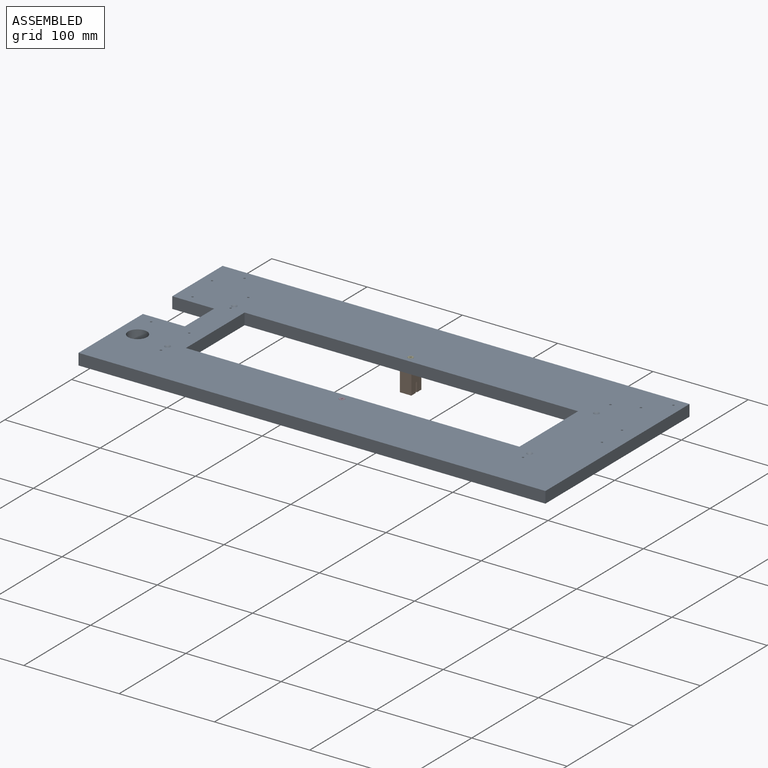
[diagram: assembled view]
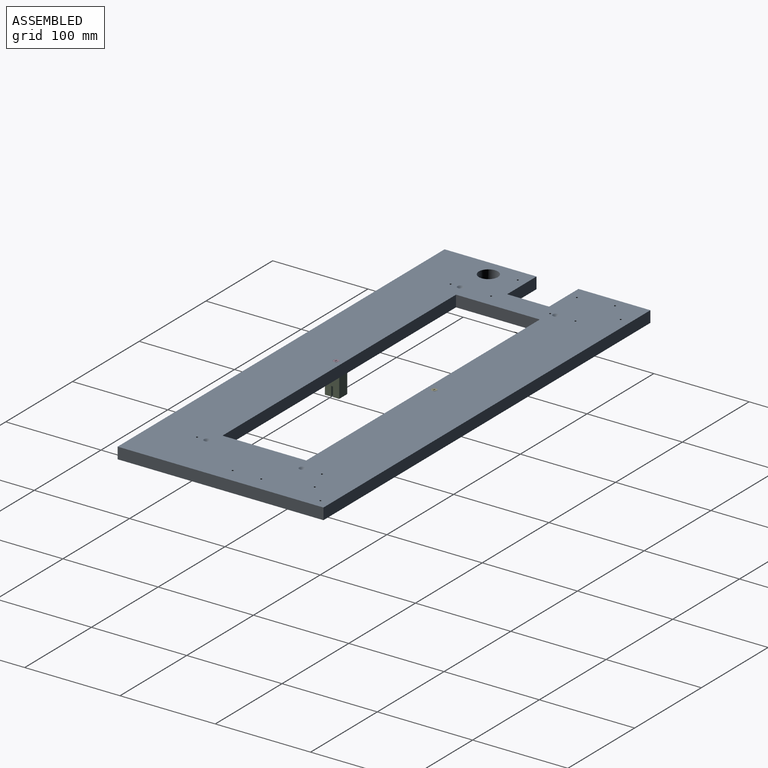
[diagram: assembled view, second angle]
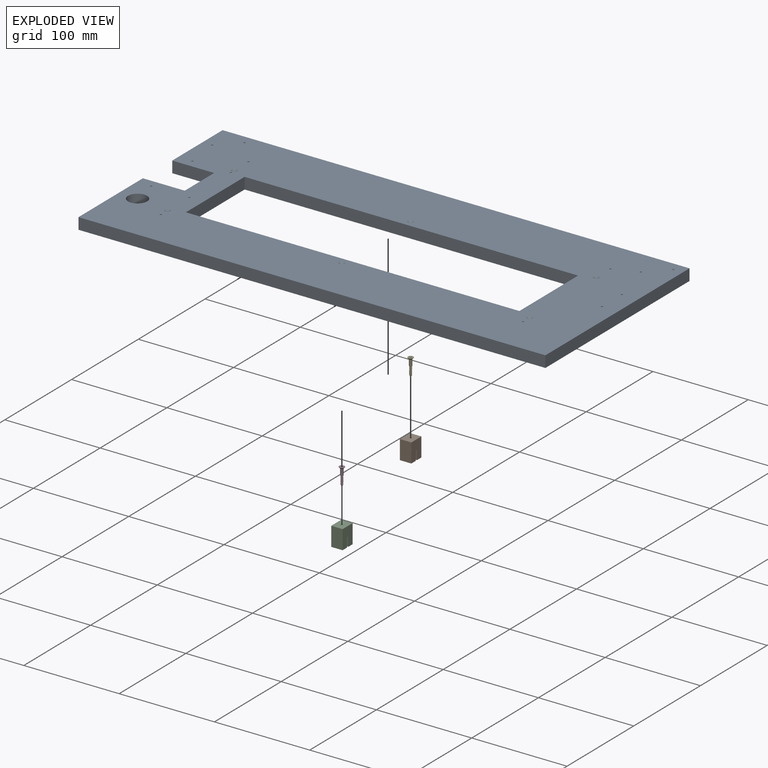
[diagram: exploded view]
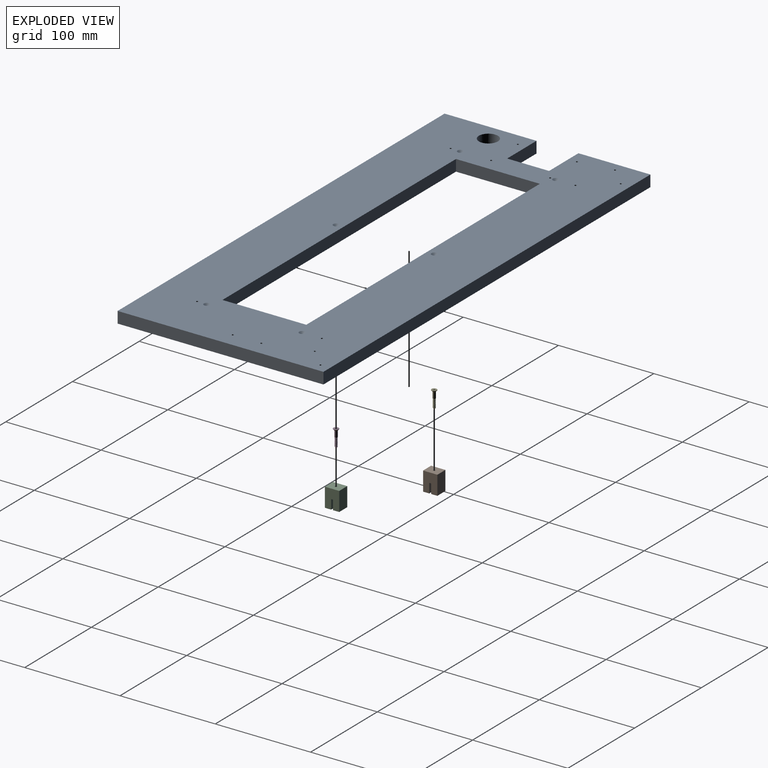
[diagram: exploded view, second angle]
ASSEMBLY  parts=5 mates=4
PART A: 51 faces, bbox 490x216x12 mm
  f0: plane 96.5x12mm, normal (-1,0,0), area 1158mm2, adj f1,f6,f9,f34
  f1: plane 490x216mm, normal (0,0,-1), area 72343.7mm2, adj f0,f2,f3,f4,f5,f7,f8,f9
  f2: plane 350x12mm, normal (0,-1,0), area 4200mm2, adj f1,f3,f5,f6
  f3: plane 88x12mm, normal (1,0,0), area 1056mm2, adj f1,f2,f4,f6
  f4: plane 350x12mm, normal (0,1,0), area 4200mm2, adj f1,f3,f5,f6
  f5: plane 88x12mm, normal (-1,0,0), area 1056mm2, adj f1,f2,f4,f6
  f6: plane 490x216mm, normal (0,0,1), area 72576.2mm2, adj f0,f2,f3,f4,f5,f7,f8,f9
  f7: plane 75.5x12mm, normal (-1,0,0), area 906mm2, adj f1,f6,f11,f12
  f8: plane 216x12mm, normal (1,0,0), area 2592mm2, adj f1,f6,f12,f34
  f9: plane 44x12mm, normal (0,1,0), area 528mm2, adj f0,f1,f6,f10
  f10: plane 44x12mm, normal (-1,0,0), area 528mm2, adj f1,f6,f9,f11
  f11: plane 44x12mm, normal (0,-1,0), area 528mm2, adj f1,f6,f7,f10
  f12: plane 490x12mm, normal (0,1,0), area 5880mm2, adj f1,f6,f7,f8
  f13: cylinder r=1mm len=10mm, axis (0,0,1), area 62.8mm2, adj f1,f50
  f14: cylinder r=1mm len=9mm, axis (0,0,1), area 56.5mm2, adj f6,f45
  f15: cylinder r=1mm len=9mm, axis (0,0,1), area 56.5mm2, adj f6,f46
  f16: cylinder r=1mm len=9mm, axis (0,0,1), area 56.5mm2, adj f6,f42
  f17: cylinder r=1mm len=10mm, axis (0,0,1), area 62.8mm2, adj f6,f40
  f18: cylinder r=1mm len=9mm, axis (0,0,1), area 56.5mm2, adj f6,f43
  f19: cylinder r=1mm len=9mm, axis (0,0,1), area 56.5mm2, adj f6,f44
  f20: cylinder r=1mm len=10mm, axis (0,0,1), area 62.8mm2, adj f1,f36
  f21: cylinder r=1mm len=10mm, axis (0,0,1), area 62.8mm2, adj f1,f49
  f22: cylinder r=1mm len=10mm, axis (0,0,1), area 62.8mm2, adj f1,f48
  f23: cylinder r=1mm len=10mm, axis (0,0,1), area 62.8mm2, adj f1,f47
  f24: cylinder r=1mm len=10mm, axis (0,0,1), area 62.8mm2, adj f1,f35
  f25: cylinder r=1mm len=9mm, axis (0,0,1), area 56.5mm2, adj f6,f41
  f26: cylinder r=1mm len=10mm, axis (0,0,1), area 62.8mm2, adj f6,f39
  f27: cylinder r=1mm len=10mm, axis (0,0,1), area 62.8mm2, adj f6,f38
  f28: cylinder r=1mm len=12mm, axis (0,0,1), area 75.4mm2, adj f1,f6
  f29: cylinder r=1mm len=10mm, axis (0,0,1), area 62.8mm2, adj f6,f37
  f30: cylinder r=1mm len=12mm, axis (0,0,1), area 75.4mm2, adj f1,f6
  f31: cylinder r=1mm len=12mm, axis (0,0,1), area 75.4mm2, adj f1,f6
  f32: cylinder r=1mm len=12mm, axis (0,0,1), area 75.4mm2, adj f1,f6
  f33: cylinder r=10mm len=20mm, axis (0,0,1), area 754mm2, adj f1,f6
  f34: plane 490x12mm, normal (0,-1,0), area 5880mm2, adj f0,f1,f6,f8
  f35: cone r=1mm half-angle=45deg, axis (0,0,1), area 35.5mm2, adj f6,f24
  f36: cone r=1mm half-angle=45deg, axis (0,0,1), area 35.5mm2, adj f6,f20
  f37: cone r=1mm half-angle=45deg, axis (0,0,-1), area 35.5mm2, adj f1,f29
  f38: cone r=1mm half-angle=45deg, axis (0,0,-1), area 35.5mm2, adj f1,f27
  f39: cone r=1mm half-angle=45deg, axis (0,0,-1), area 35.5mm2, adj f1,f26
  f40: cone r=1mm half-angle=45deg, axis (0,0,-1), area 35.5mm2, adj f1,f17
  f41: cone r=1mm half-angle=45deg, axis (0,0,-1), area 66.6mm2, adj f1,f25
  f42: cone r=1mm half-angle=45deg, axis (0,0,-1), area 66.6mm2, adj f1,f16
  f43: cone r=1mm half-angle=45deg, axis (0,0,-1), area 66.6mm2, adj f1,f18
  f44: cone r=1mm half-angle=45deg, axis (0,0,-1), area 66.6mm2, adj f1,f19
  f45: cone r=1mm half-angle=45deg, axis (0,0,-1), area 66.6mm2, adj f1,f14
  f46: cone r=1mm half-angle=45deg, axis (0,0,-1), area 66.6mm2, adj f1,f15
  f47: cone r=1mm half-angle=45deg, axis (0,0,1), area 35.5mm2, adj f6,f23
  f48: cone r=1mm half-angle=45deg, axis (0,0,1), area 35.5mm2, adj f6,f22
  f49: cone r=1mm half-angle=45deg, axis (0,0,1), area 35.5mm2, adj f6,f21
  f50: cone r=1mm half-angle=45deg, axis (0,0,1), area 35.5mm2, adj f6,f13
PART B: 12 faces, bbox 15x12x20 mm
  f0: plane 12x6.5mm, normal (0,0,-1), area 78mm2, adj f1,f2,f4,f8
  f1: plane 20x15mm, normal (0,1,0), area 280mm2, adj f0,f4,f5,f6,f7,f8,f9,f10
  f2: plane 20x15mm, normal (0,-1,0), area 280mm2, adj f0,f4,f5,f6,f7,f8,f9,f11
  f3: cylinder r=1mm len=10mm, axis (0,0,1), area 62.8mm2, adj f7,f10,f11
  f4: plane 20x12mm, normal (-1,0,0), area 240mm2, adj f0,f1,f2,f7
  f5: plane 20x12mm, normal (1,0,0), area 240mm2, adj f1,f2,f6,f7
  f6: plane 12x6.5mm, normal (0,0,-1), area 78mm2, adj f1,f2,f5,f9
  f7: plane 15x12mm, normal (0,0,1), area 176.9mm2, adj f1,f2,f3,f4,f5
  f8: plane 12x10mm, normal (1,0,0), area 120mm2, adj f0,f1,f2,f10,f11
  f9: plane 12x10mm, normal (-1,0,0), area 120mm2, adj f1,f2,f6,f10,f11
  f10: plane 6x2mm, normal (0,0,-1), area 10.4mm2, adj f1,f3,f8,f9
  f11: plane 6x2mm, normal (0,0,-1), area 10.4mm2, adj f2,f3,f8,f9
PART C: same geometry as B
PART D: 55 faces, bbox 6.2x6.2x20.6 mm
  f0: cylinder r=1.05mm len=2.1mm, axis (0,0,1), area 2.3mm2, adj f6,f52,f54
  f1: cylinder r=1.5mm len=6.35mm, axis (0,0,1), area 59.8mm2, adj f2,f54
  f2: cone r=2.15mm half-angle=45deg, axis (0,0,-1), area 24.8mm2, adj f1,f3
  f3: cylinder r=2.8mm len=5.6mm, axis (0,0,1), area 6.2mm2, adj f2,f53
  f4: cylinder r=1.05mm len=2.1mm, axis (0,0,1), area 4.1mm2, adj f5,f9,f50,f51
  f5: cone r=1.28mm half-angle=53.1deg, axis (0,-0.31,-0.95), area 4.2mm2, adj f4,f6,f51
  f6: cone r=1.28mm half-angle=53.1deg, axis (0,0.31,0.95), area 4.2mm2, adj f0,f5,f52
  f7: cylinder r=1.05mm len=2.1mm, axis (0,0,1), area 4.1mm2, adj f8,f12,f48,f49
  f8: cone r=1.28mm half-angle=53.1deg, axis (0,-0.31,-0.95), area 4.2mm2, adj f7,f9,f49
  f9: cone r=1.28mm half-angle=53.1deg, axis (0,0.31,0.95), area 4.2mm2, adj f4,f8,f50
  f10: cylinder r=1.05mm len=2.1mm, axis (0,0,1), area 4.1mm2, adj f11,f15,f46,f47
  f11: cone r=1.28mm half-angle=53.1deg, axis (0,-0.31,-0.95), area 4.2mm2, adj f10,f12,f47
  f12: cone r=1.28mm half-angle=53.1deg, axis (0,0.31,0.95), area 4.2mm2, adj f7,f11,f48
  f13: cylinder r=1.05mm len=2.1mm, axis (0,0,1), area 4.1mm2, adj f14,f18,f44,f45
  f14: cone r=1.28mm half-angle=53.1deg, axis (0,-0.31,-0.95), area 4.2mm2, adj f13,f15,f45
  f15: cone r=1.28mm half-angle=53.1deg, axis (0,0.31,0.95), area 4.2mm2, adj f10,f14,f46
  f16: cylinder r=1.05mm len=2.1mm, axis (0,0,1), area 4.1mm2, adj f17,f21,f42,f43
  f17: cone r=1.28mm half-angle=53.1deg, axis (0,-0.31,-0.95), area 4.2mm2, adj f16,f18,f43
  f18: cone r=1.28mm half-angle=53.1deg, axis (0,0.31,0.95), area 4.2mm2, adj f13,f17,f44
  f19: cylinder r=1.05mm len=0.97mm, axis (0,0,1), area 0mm2, adj f23,f39
  f20: cone r=1.28mm half-angle=53.1deg, axis (0,-0.31,-0.95), area 4.2mm2, adj f21,f22,f41
  f21: cone r=1.28mm half-angle=53.1deg, axis (0,0.31,0.95), area 4.2mm2, adj f16,f20,f42
  f22: cylinder r=1.05mm len=2.1mm, axis (0,0,1), area 4.1mm2, adj f20,f25,f40,f41
  f23: cone r=0.53mm half-angle=19.3deg, axis (0,0,-1), area 9.6mm2, adj f19,f24,f39
  f24: cone r=1.28mm half-angle=53.1deg, axis (0,-0.31,-0.95), area 4.5mm2, adj f23,f25,f39
  f25: cone r=1.28mm half-angle=53.1deg, axis (0,0.31,0.95), area 4.2mm2, adj f22,f24,f40
  f26: plane 1.76x0.75mm, normal (0,0.98,-0.17), area 0.8mm2, adj f27,f37,f38,f53
  f27: plane 1.76x1.44mm, normal (0.98,0,-0.17), area 2mm2, adj f26,f28,f38,f53
  f28: plane 1.76x1.44mm, normal (0,0.98,-0.17), area 2mm2, adj f27,f29,f38,f53
  f29: plane 1.76x0.75mm, normal (0.98,0,-0.17), area 0.8mm2, adj f28,f30,f38,f53
  f30: plane 1.76x1.44mm, normal (0,-0.98,-0.17), area 2mm2, adj f29,f31,f38,f53
  f31: plane 1.76x1.44mm, normal (0.98,0,-0.17), area 2mm2, adj f30,f32,f38,f53
  f32: plane 1.76x0.75mm, normal (0,-0.98,-0.17), area 0.8mm2, adj f31,f33,f38,f53
  f33: plane 1.76x1.44mm, normal (-0.98,0,-0.17), area 2mm2, adj f32,f34,f38,f53
  f34: plane 1.76x1.44mm, normal (0,-0.98,-0.17), area 2mm2, adj f33,f35,f38,f53
  f35: plane 1.76x0.75mm, normal (-0.98,0,-0.17), area 0.8mm2, adj f34,f36,f38,f53
  f36: plane 1.76x1.44mm, normal (0,0.98,-0.17), area 2mm2, adj f35,f37,f38,f53
  f37: plane 1.76x1.44mm, normal (-0.98,0,-0.17), area 2mm2, adj f26,f36,f38,f53
  f38: plane 2.38x2.38mm, normal (0,0,-1), area 0.6mm2, adj f26,f27,f28,f29,f30,f31,f32,f33
  f39: plane 2.52x2.35mm, normal (0,0.31,0.95), area 0.2mm2, adj f19,f23,f24
  f40: plane 2.74x1.69mm, normal (0,-0.31,-0.95), area 0.1mm2, adj f22,f25
  f41: plane 2.24x1.19mm, normal (0,0.31,0.95), area 0.1mm2, adj f20,f22
  f42: plane 2.74x1.69mm, normal (0,-0.31,-0.95), area 0.1mm2, adj f16,f21
  f43: plane 2.24x1.19mm, normal (0,0.31,0.95), area 0.1mm2, adj f16,f17
  f44: plane 2.74x1.69mm, normal (0,-0.31,-0.95), area 0.1mm2, adj f13,f18
  f45: plane 2.24x1.19mm, normal (0,0.31,0.95), area 0.1mm2, adj f13,f14
  f46: plane 2.74x1.69mm, normal (0,-0.31,-0.95), area 0.1mm2, adj f10,f15
  f47: plane 2.24x1.19mm, normal (0,0.31,0.95), area 0.1mm2, adj f10,f11
  f48: plane 2.74x1.69mm, normal (0,-0.31,-0.95), area 0.1mm2, adj f7,f12
  f49: plane 2.24x1.19mm, normal (0,0.31,0.95), area 0.1mm2, adj f7,f8
  f50: plane 2.74x1.69mm, normal (0,-0.31,-0.95), area 0.1mm2, adj f4,f9
  f51: plane 2.24x1.19mm, normal (0,0.31,0.95), area 0.1mm2, adj f4,f5
  f52: plane 2.1x1.05mm, normal (0,-0.31,-0.95), area 0.1mm2, adj f0,f6
  f53: plane 5.6x5.6mm, normal (0,0,-1), area 20.7mm2, adj f3,f26,f27,f28,f29,f30,f31,f32
  f54: plane 3x3mm, normal (0,0,1), area 3.6mm2, adj f0,f1
PART E: same geometry as D
PLACE A at identity
PLACE B rot(axis=(0,0,1),90deg) t=(99.5,328,-61)mm
PLACE C rot(axis=(0,0,-1),90deg) t=(-111.5,-140,-61)mm
PLACE D rot(axis=(1,0,0),180deg) t=(-6,42.5,594.5)mm
PLACE E rot(axis=(1,0,0),180deg) t=(-6,145.5,594.5)mm
MATE fastened E.f1 <-> A.f24  axis (0,0,1) through (-6,145.5,594.5)mm
MATE fastened D.f1 <-> A.f20  axis (0,0,1) through (-6,42.5,594.5)mm
MATE fastened C.f3 <-> A.f20  axis (0,0,1) through (-6,42.5,582.5)mm
MATE fastened B.f3 <-> A.f24  axis (0,0,1) through (-6,145.5,582.5)mm
